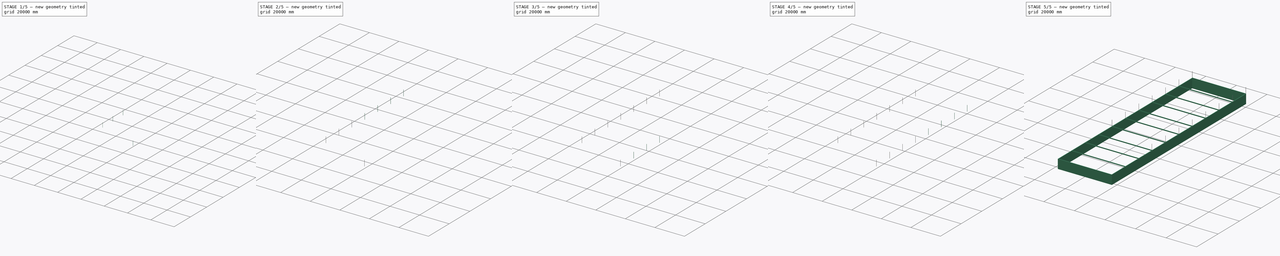
[diagram: build sequence overview — one tinted view per stage of 5, left to right]
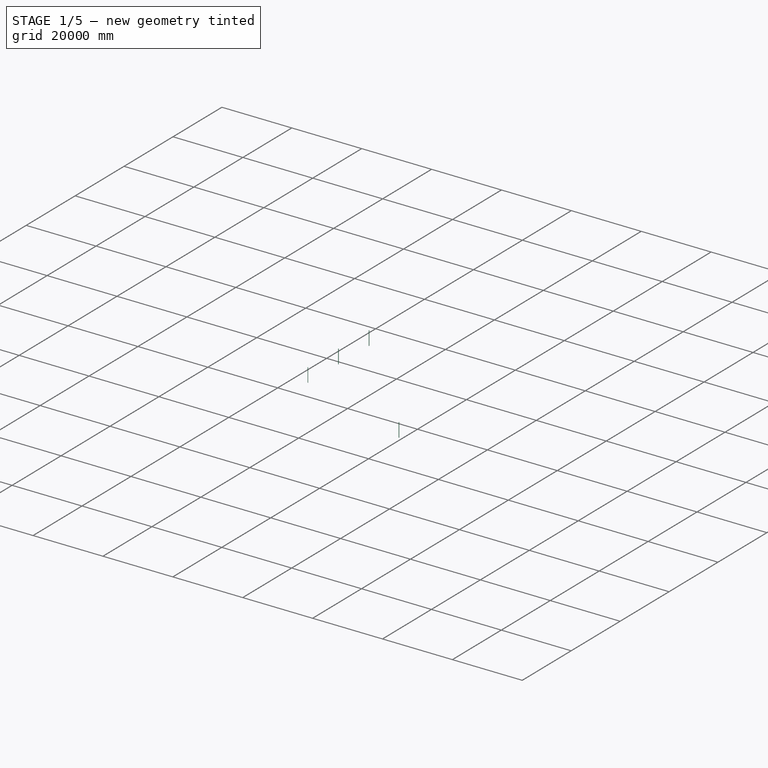
[diagram: stage 1 of 5 — iso view after this stage's code; geometry added in this stage tinted green]
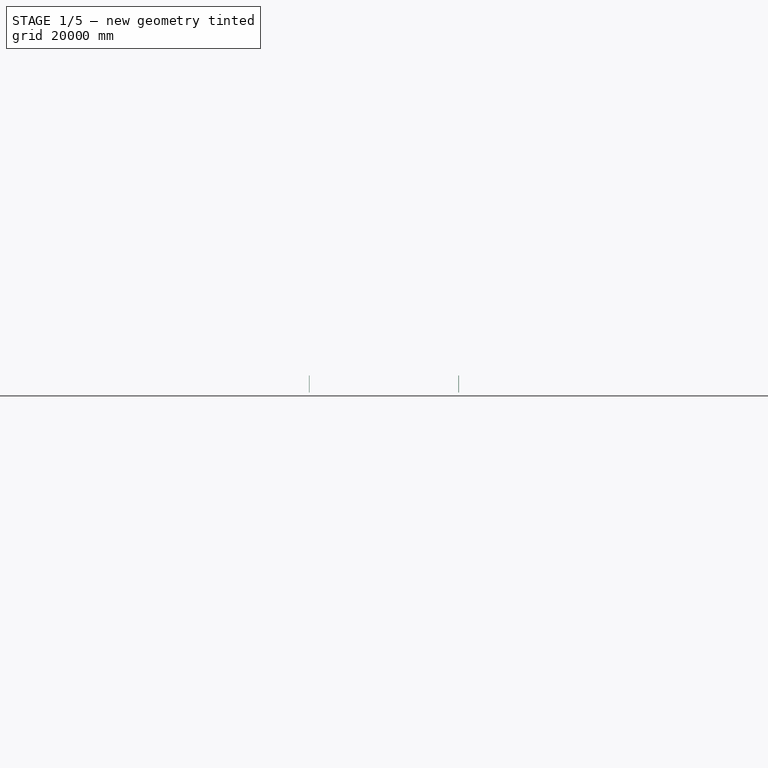
[diagram: stage 1 of 5 — front view after this stage's code; geometry added in this stage tinted green]
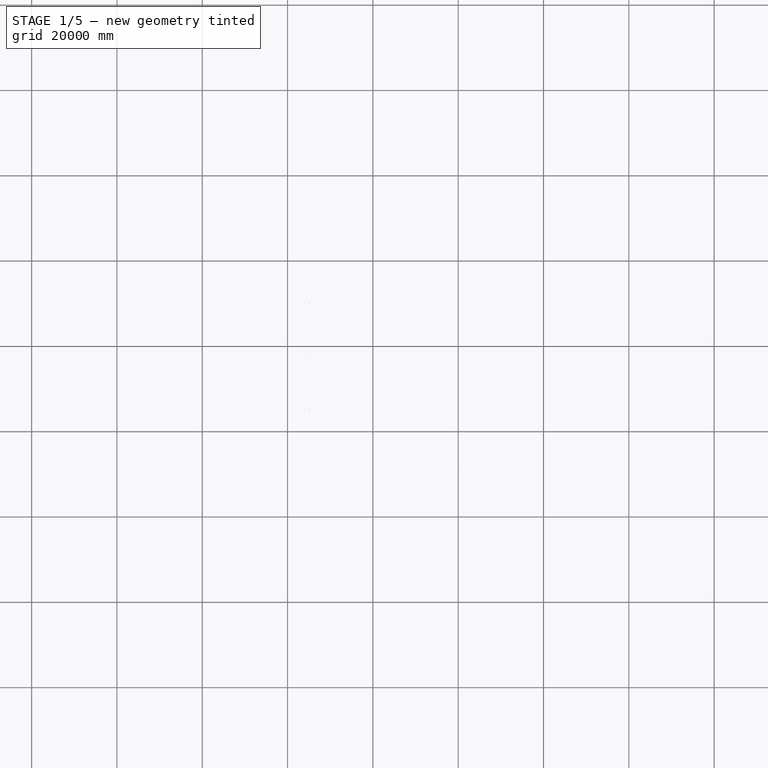
[diagram: stage 1 of 5 — top view after this stage's code; geometry added in this stage tinted green]
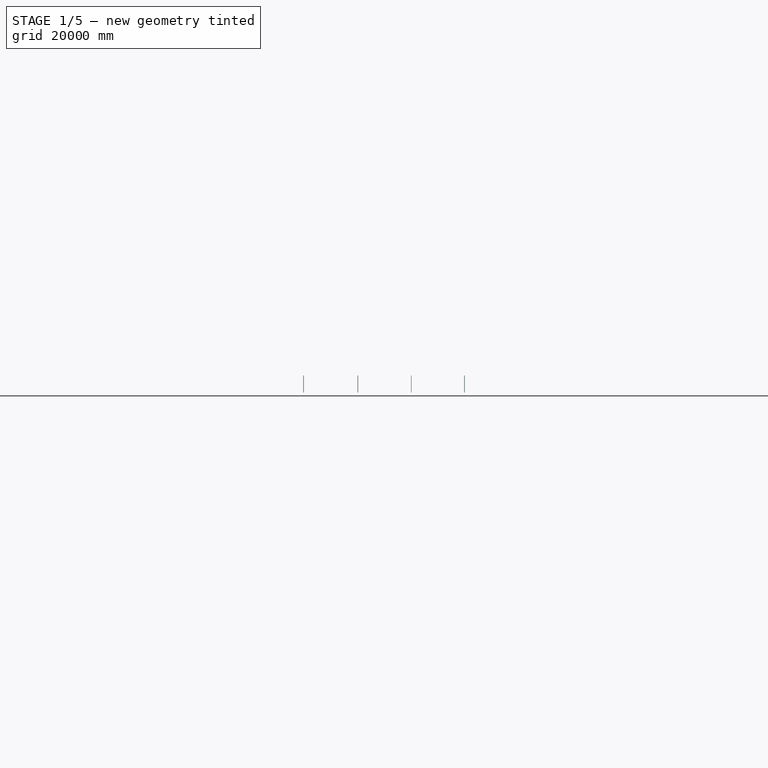
[diagram: stage 1 of 5 — right view after this stage's code; geometry added in this stage tinted green]
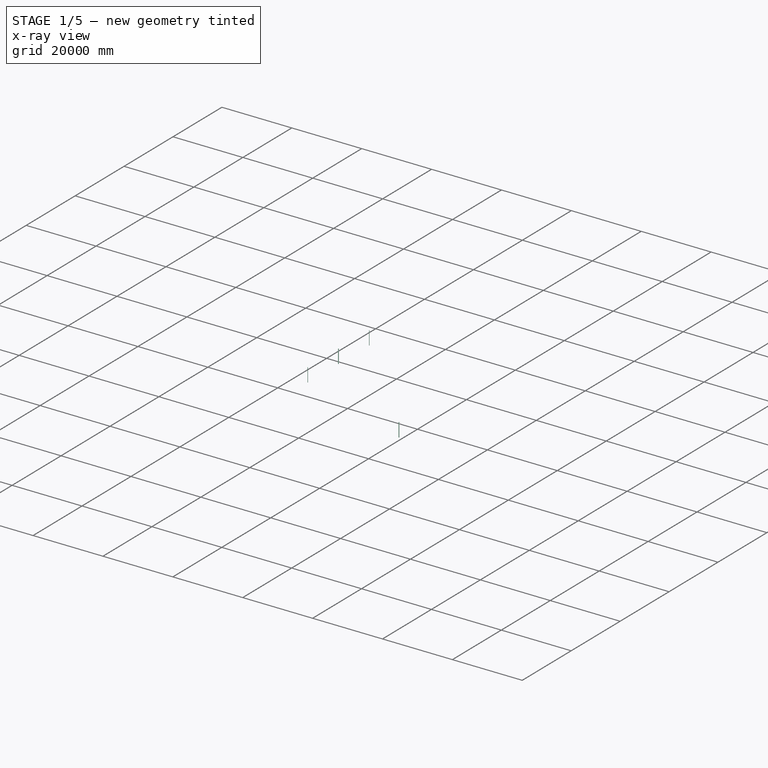
[diagram: stage 1 of 5 — x-ray composite at the iso view; earlier geometry ghosted, this stage's added geometry solid]
FCSTD DOCUMENT  (FreeCAD 1.0R39319 (Git))
Label: Long-factory
License: All rights reserved
objects: Part::FeaturePython×23, App::GeometryPython×6, Sketcher::SketchObject×5, App::DocumentObjectGroup×3, Part::Feature×1, Part::Part2DObjectPython×1
note: 40 computed .brp shape members not serialized (recipe doc carries the construction recipe); baked Part::Feature solids carry a one-line shape summary decoded from their .brp

FEATURE [Part::FeaturePython] Structure015  label="Column011"  # Arch/BIM 24 (typed FeaturePython)
  BaseMirror = false
  BaseOffsetX = 0
  BaseOffsetY = 0
  BasePerpendicularToTool = false
  BaseRotation = 0
  ComputedLength = 4000
  FaceMaker = 0
  Height = 4000
  HorizontalArea = 10000
  IfcData = attributes={"GlobalId": {"name": "GlobalId", "type": "IfcGloballyUniqueId", "is_enum": false, "enum_values": []}, "Description": {"... (+438 chars omitted),+1 more (map truncated)
  IfcType = 24
  Length = 100
  MoveBase = false
  MoveWithHost = false
  Nodes = (2) [(-3.88578e-16,0,0),(-3.88578e-16,0,4000)]
  NodesOffset = 0
  Normal = (0,0,0)
  PerimeterLength = 400
  Placement = pos=(-34888.8,-49975,6000) rot=(0,0,1;0rad)
  PredefinedType = 0
  ToolOffsetFirst = 0
  ToolOffsetLast = 0
  VerticalArea = 1600000
  Width = 100
FEATURE [Part::FeaturePython] Structure016  label="Column012"  # Arch/BIM 24 (typed FeaturePython)
  BaseMirror = false
  BaseOffsetX = 0
  BaseOffsetY = 0
  BasePerpendicularToTool = false
  BaseRotation = 0
  ComputedLength = 4000
  FaceMaker = 0
  Height = 4000
  HorizontalArea = 10000
  IfcData = attributes={"GlobalId": {"name": "GlobalId", "type": "IfcGloballyUniqueId", "is_enum": false, "enum_values": []}, "Description": {"... (+438 chars omitted),+1 more (map truncated)
  IfcType = 24
  Length = 100
  MoveBase = false
  MoveWithHost = false
  Nodes = (2) [(-3.88578e-16,0,0),(-3.88578e-16,0,4000)]
  NodesOffset = 0
  Normal = (0,0,0)
  PerimeterLength = 400
  Placement = pos=(-34888.8,-62475,6000) rot=(0,0,1;0rad)
  PredefinedType = 0
  ToolOffsetFirst = 0
  ToolOffsetLast = 0
  VerticalArea = 1600000
  Width = 100
FEATURE [Part::FeaturePython] Structure017  label="Column013"  # Arch/BIM 24 (typed FeaturePython)
  BaseMirror = false
  BaseOffsetX = 0
  BaseOffsetY = 0
  BasePerpendicularToTool = false
  BaseRotation = 0
  ComputedLength = 4000
  FaceMaker = 0
  Height = 4000
  HorizontalArea = 10000
  IfcData = attributes={"GlobalId": {"name": "GlobalId", "type": "IfcGloballyUniqueId", "is_enum": false, "enum_values": []}, "Description": {"... (+438 chars omitted),+1 more (map truncated)
  IfcType = 24
  Length = 100
  MoveBase = false
  MoveWithHost = false
  Nodes = (2) [(-3.88578e-16,0,0),(-3.88578e-16,0,4000)]
  NodesOffset = 0
  Normal = (0,0,0)
  PerimeterLength = 400
  Placement = pos=(-34888.8,-74975,6000) rot=(0,0,1;0rad)
  PredefinedType = 0
  ToolOffsetFirst = 0
  ToolOffsetLast = 0
  VerticalArea = 1600000
  Width = 100
FEATURE [Part::FeaturePython] Structure018  label="Column014"  # Arch/BIM 24 (typed FeaturePython)
  BaseMirror = false
  BaseOffsetX = 0
  BaseOffsetY = 0
  BasePerpendicularToTool = false
  BaseRotation = 0
  ComputedLength = 4000
  FaceMaker = 0
  Height = 4000
  HorizontalArea = 10000
  IfcData = attributes={"GlobalId": {"name": "GlobalId", "type": "IfcGloballyUniqueId", "is_enum": false, "enum_values": []}, "Description": {"... (+438 chars omitted),+1 more (map truncated)
  IfcType = 24
  Length = 100
  MoveBase = false
  MoveWithHost = false
  Nodes = (2) [(-3.88578e-16,0,0),(-3.88578e-16,0,4000)]
  NodesOffset = 0
  Normal = (0,0,0)
  PerimeterLength = 400
  Placement = pos=(111.246,-87725,6000) rot=(0,0,1;0rad)
  PredefinedType = 0
  ToolOffsetFirst = 0
  ToolOffsetLast = 0
  VerticalArea = 1600000
  Width = 100
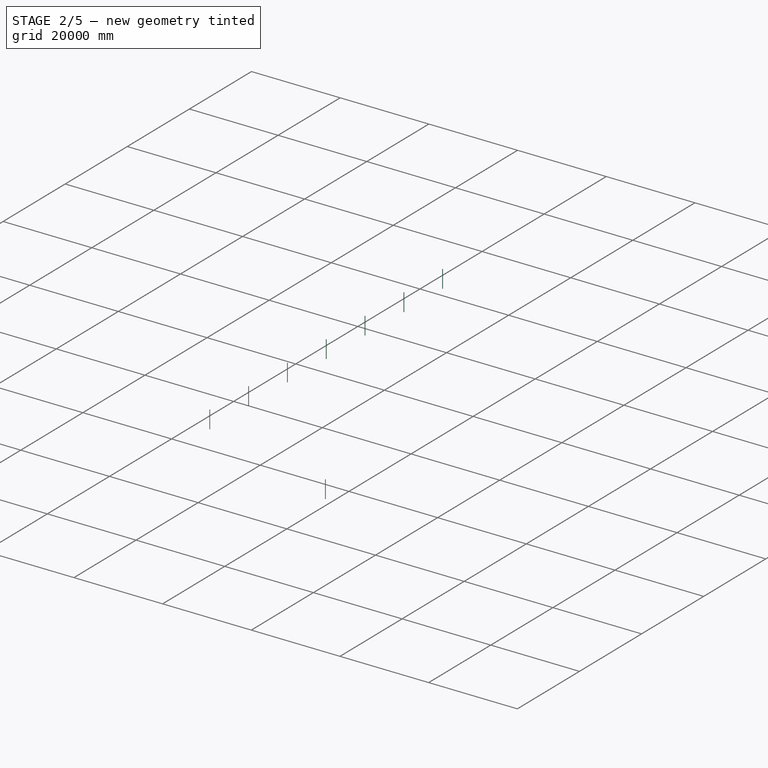
[diagram: stage 2 of 5 — iso view after this stage's code; geometry added in this stage tinted green]
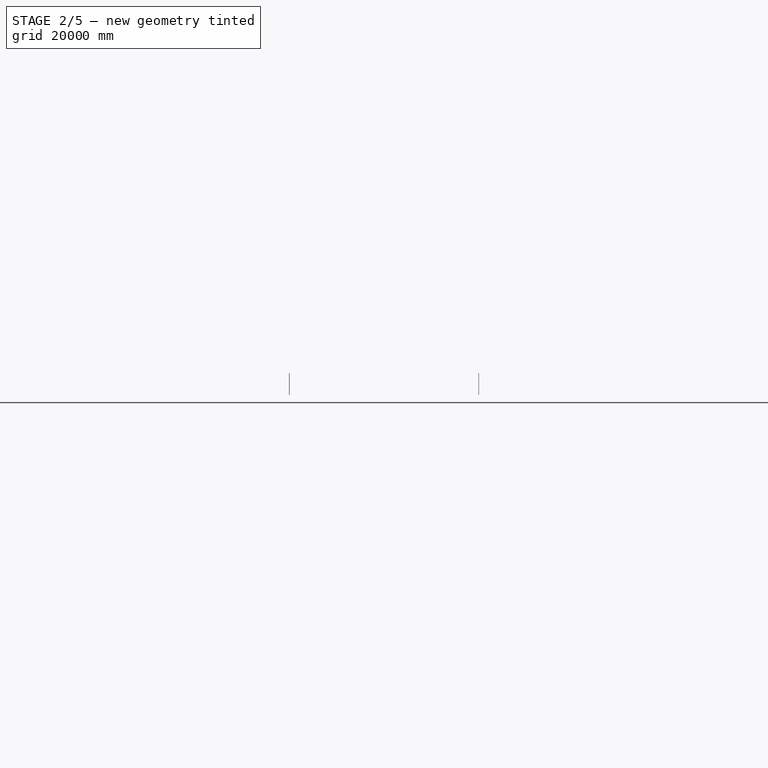
[diagram: stage 2 of 5 — front view after this stage's code; geometry added in this stage tinted green]
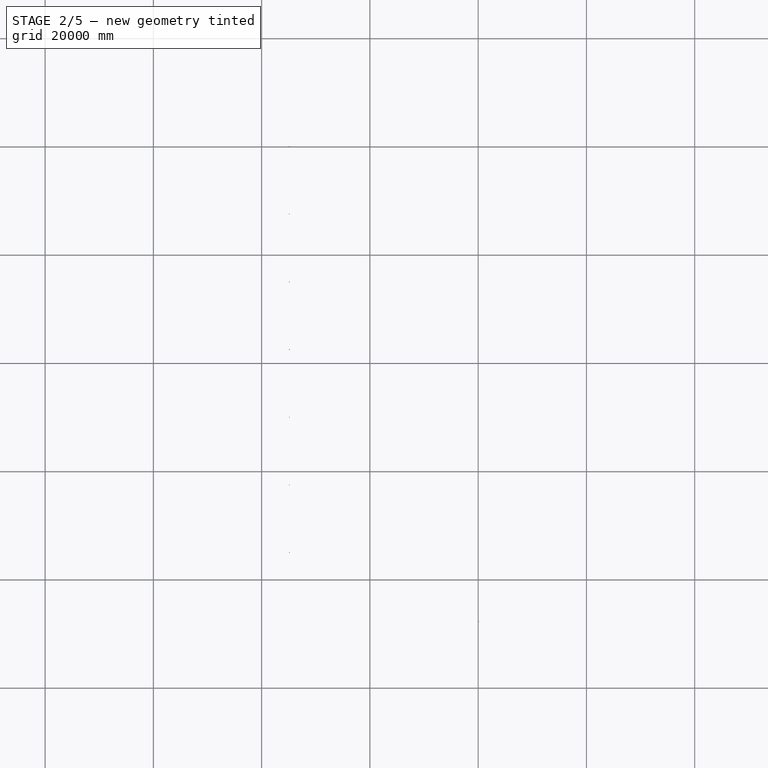
[diagram: stage 2 of 5 — top view after this stage's code; geometry added in this stage tinted green]
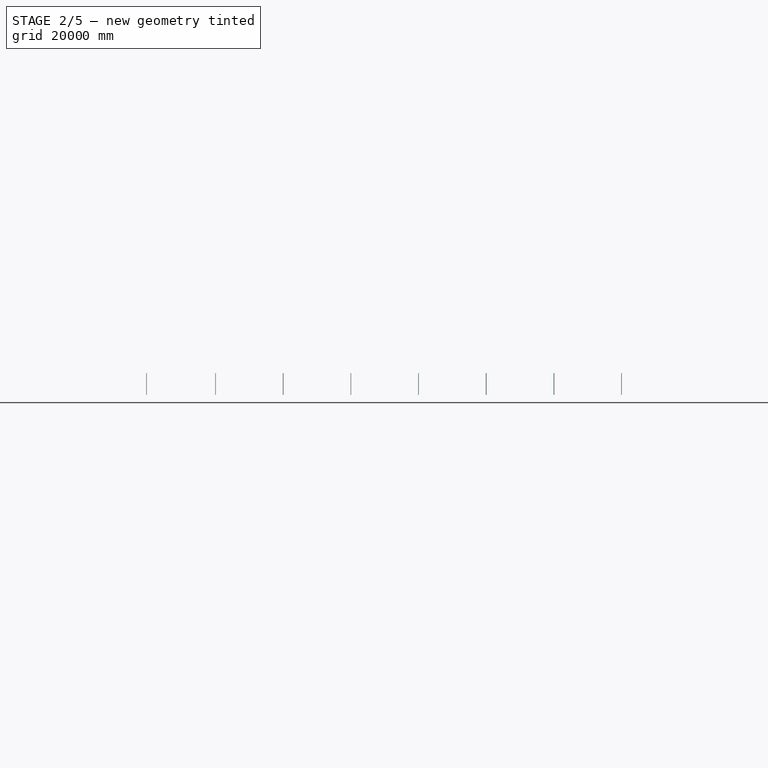
[diagram: stage 2 of 5 — right view after this stage's code; geometry added in this stage tinted green]
FEATURE [Part::FeaturePython] Structure011  label="Column007"  # Arch/BIM 24 (typed FeaturePython)
  BaseMirror = false
  BaseOffsetX = 0
  BaseOffsetY = 0
  BasePerpendicularToTool = false
  BaseRotation = 0
  ComputedLength = 4000
  FaceMaker = 0
  Height = 4000
  HorizontalArea = 10000
  IfcData = attributes={"GlobalId": {"name": "GlobalId", "type": "IfcGloballyUniqueId", "is_enum": false, "enum_values": []}, "Description": {"... (+438 chars omitted),+1 more (map truncated)
  IfcType = 24
  Length = 100
  MoveBase = false
  MoveWithHost = false
  Nodes = (2) [(-3.88578e-16,0,0),(-3.88578e-16,0,4000)]
  NodesOffset = 0
  Normal = (0,0,0)
  PerimeterLength = 400
  Placement = pos=(-34888.8,25,6000) rot=(0,0,1;0rad)
  PredefinedType = 0
  ToolOffsetFirst = 0
  ToolOffsetLast = 0
  VerticalArea = 1600000
  Width = 100
FEATURE [Part::FeaturePython] Structure012  label="Column008"  # Arch/BIM 24 (typed FeaturePython)
  BaseMirror = false
  BaseOffsetX = 0
  BaseOffsetY = 0
  BasePerpendicularToTool = false
  BaseRotation = 0
  ComputedLength = 4000
  FaceMaker = 0
  Height = 4000
  HorizontalArea = 10000
  IfcData = attributes={"GlobalId": {"name": "GlobalId", "type": "IfcGloballyUniqueId", "is_enum": false, "enum_values": []}, "Description": {"... (+438 chars omitted),+1 more (map truncated)
  IfcType = 24
  Length = 100
  MoveBase = false
  MoveWithHost = false
  Nodes = (2) [(-3.88578e-16,0,0),(-3.88578e-16,0,4000)]
  NodesOffset = 0
  Normal = (0,0,0)
  PerimeterLength = 400
  Placement = pos=(-34902.2,-12458.7,6000) rot=(0,0,1;0rad)
  PredefinedType = 0
  ToolOffsetFirst = 0
  ToolOffsetLast = 0
  VerticalArea = 1600000
  Width = 100
FEATURE [Part::FeaturePython] Structure013  label="Column009"  # Arch/BIM 24 (typed FeaturePython)
  BaseMirror = false
  BaseOffsetX = 0
  BaseOffsetY = 0
  BasePerpendicularToTool = false
  BaseRotation = 0
  ComputedLength = 4000
  FaceMaker = 0
  Height = 4000
  HorizontalArea = 10000
  IfcData = attributes={"GlobalId": {"name": "GlobalId", "type": "IfcGloballyUniqueId", "is_enum": false, "enum_values": []}, "Description": {"... (+438 chars omitted),+1 more (map truncated)
  IfcType = 24
  Length = 100
  MoveBase = false
  MoveWithHost = false
  Nodes = (2) [(-3.88578e-16,0,0),(-3.88578e-16,0,4000)]
  NodesOffset = 0
  Normal = (0,0,0)
  PerimeterLength = 400
  Placement = pos=(-34888.8,-24975,6000) rot=(0,0,1;0rad)
  PredefinedType = 0
  ToolOffsetFirst = 0
  ToolOffsetLast = 0
  VerticalArea = 1600000
  Width = 100
FEATURE [Part::FeaturePython] Structure014  label="Column010"  # Arch/BIM 24 (typed FeaturePython)
  BaseMirror = false
  BaseOffsetX = 0
  BaseOffsetY = 0
  BasePerpendicularToTool = false
  BaseRotation = 0
  ComputedLength = 4000
  FaceMaker = 0
  Height = 4000
  HorizontalArea = 10000
  IfcData = attributes={"GlobalId": {"name": "GlobalId", "type": "IfcGloballyUniqueId", "is_enum": false, "enum_values": []}, "Description": {"... (+438 chars omitted),+1 more (map truncated)
  IfcType = 24
  Length = 100
  MoveBase = false
  MoveWithHost = false
  Nodes = (2) [(-3.88578e-16,0,0),(-3.88578e-16,0,4000)]
  NodesOffset = 0
  Normal = (0,0,0)
  PerimeterLength = 400
  Placement = pos=(-34888.8,-37475,6000) rot=(0,0,1;0rad)
  PredefinedType = 0
  ToolOffsetFirst = 0
  ToolOffsetLast = 0
  VerticalArea = 1600000
  Width = 100
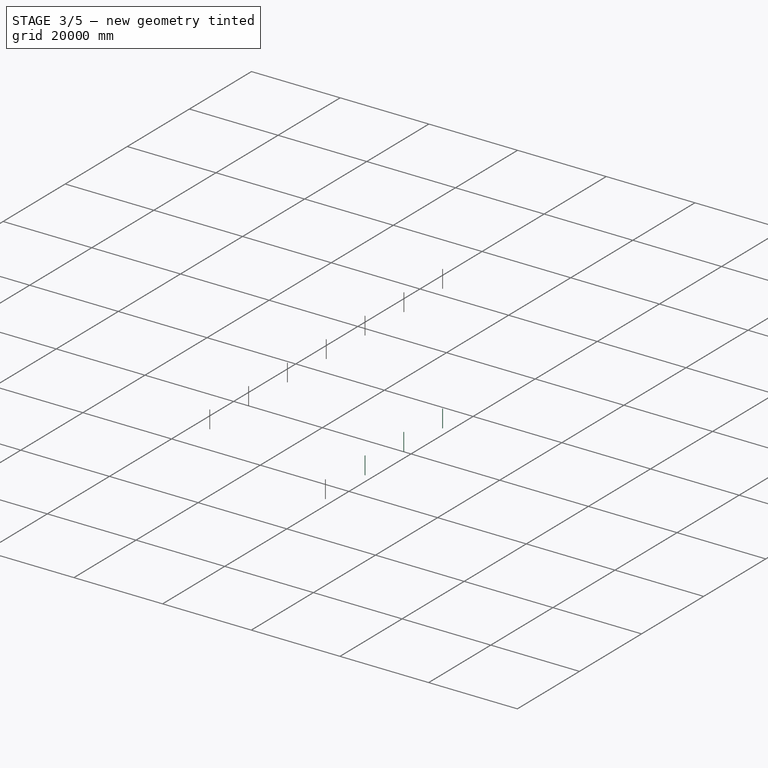
[diagram: stage 3 of 5 — iso view after this stage's code; geometry added in this stage tinted green]
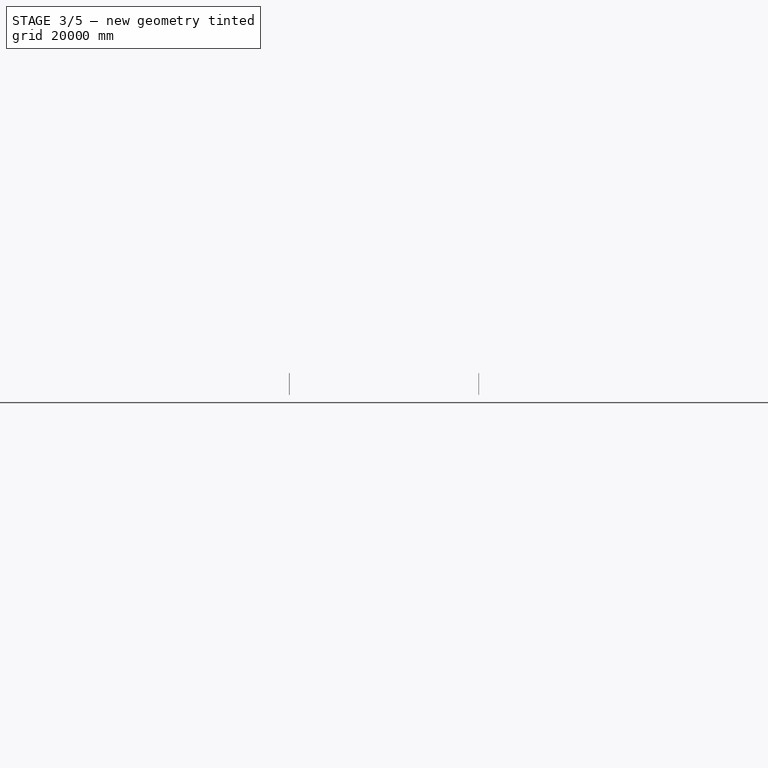
[diagram: stage 3 of 5 — front view after this stage's code; geometry added in this stage tinted green]
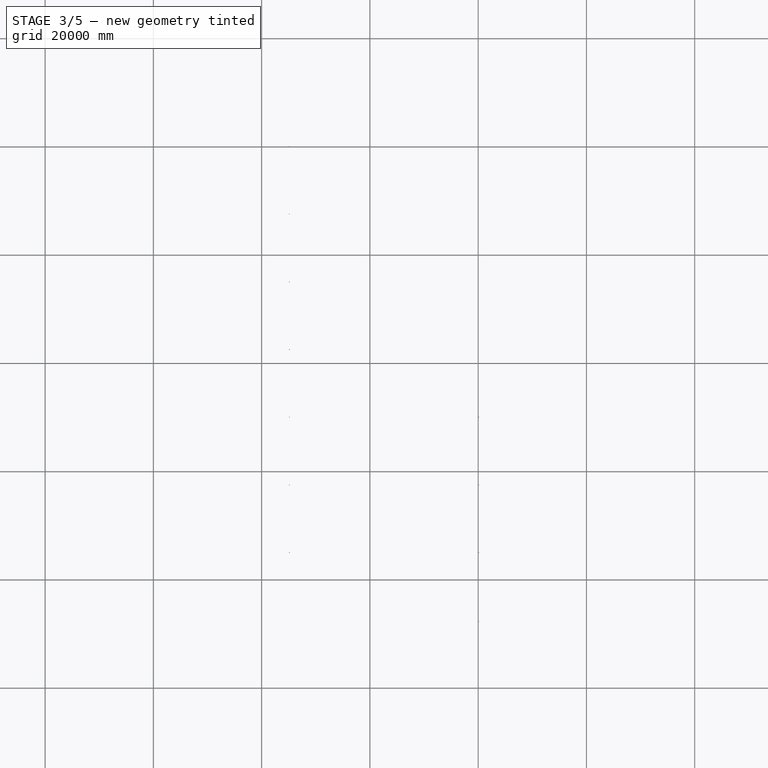
[diagram: stage 3 of 5 — top view after this stage's code; geometry added in this stage tinted green]
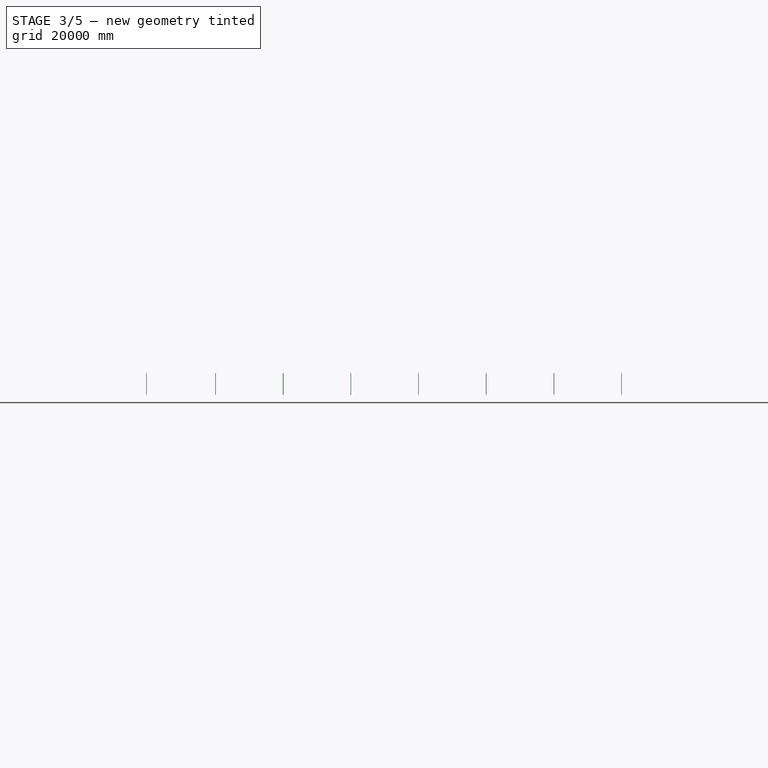
[diagram: stage 3 of 5 — right view after this stage's code; geometry added in this stage tinted green]
FEATURE [Part::FeaturePython] Structure008  label="Column004"  # Arch/BIM 24 (typed FeaturePython)
  BaseMirror = false
  BaseOffsetX = 0
  BaseOffsetY = 0
  BasePerpendicularToTool = false
  BaseRotation = 0
  ComputedLength = 4000
  FaceMaker = 0
  Height = 4000
  HorizontalArea = 10000
  IfcData = attributes={"GlobalId": {"name": "GlobalId", "type": "IfcGloballyUniqueId", "is_enum": false, "enum_values": []}, "Description": {"... (+438 chars omitted),+1 more (map truncated)
  IfcType = 24
  Length = 100
  MoveBase = false
  MoveWithHost = false
  Nodes = (2) [(-3.88578e-16,0,0),(-3.88578e-16,0,4000)]
  NodesOffset = 0
  Normal = (0,0,0)
  PerimeterLength = 400
  Placement = pos=(111.246,-49975,6000) rot=(0,0,1;0rad)
  PredefinedType = 0
  ToolOffsetFirst = 0
  ToolOffsetLast = 0
  VerticalArea = 1600000
  Width = 100
FEATURE [Part::FeaturePython] Structure009  label="Column005"  # Arch/BIM 24 (typed FeaturePython)
  BaseMirror = false
  BaseOffsetX = 0
  BaseOffsetY = 0
  BasePerpendicularToTool = false
  BaseRotation = 0
  ComputedLength = 4000
  FaceMaker = 0
  Height = 4000
  HorizontalArea = 10000
  IfcData = attributes={"GlobalId": {"name": "GlobalId", "type": "IfcGloballyUniqueId", "is_enum": false, "enum_values": []}, "Description": {"... (+438 chars omitted),+1 more (map truncated)
  IfcType = 24
  Length = 100
  MoveBase = false
  MoveWithHost = false
  Nodes = (2) [(-3.88578e-16,0,0),(-3.88578e-16,0,4000)]
  NodesOffset = 0
  Normal = (0,0,0)
  PerimeterLength = 400
  Placement = pos=(111.246,-62475,6000) rot=(0,0,1;0rad)
  PredefinedType = 0
  ToolOffsetFirst = 0
  ToolOffsetLast = 0
  VerticalArea = 1600000
  Width = 100
FEATURE [Part::FeaturePython] Structure010  label="Column006"  # Arch/BIM 24 (typed FeaturePython)
  BaseMirror = false
  BaseOffsetX = 0
  BaseOffsetY = 0
  BasePerpendicularToTool = false
  BaseRotation = 0
  ComputedLength = 4000
  FaceMaker = 0
  Height = 4000
  HorizontalArea = 10000
  IfcData = attributes={"GlobalId": {"name": "GlobalId", "type": "IfcGloballyUniqueId", "is_enum": false, "enum_values": []}, "Description": {"... (+438 chars omitted),+1 more (map truncated)
  IfcType = 24
  Length = 100
  MoveBase = false
  MoveWithHost = false
  Nodes = (2) [(-3.88578e-16,0,0),(-3.88578e-16,0,4000)]
  NodesOffset = 0
  Normal = (0,0,0)
  PerimeterLength = 400
  Placement = pos=(111.246,-74975,6000) rot=(0,0,1;0rad)
  PredefinedType = 0
  ToolOffsetFirst = 0
  ToolOffsetLast = 0
  VerticalArea = 1600000
  Width = 100
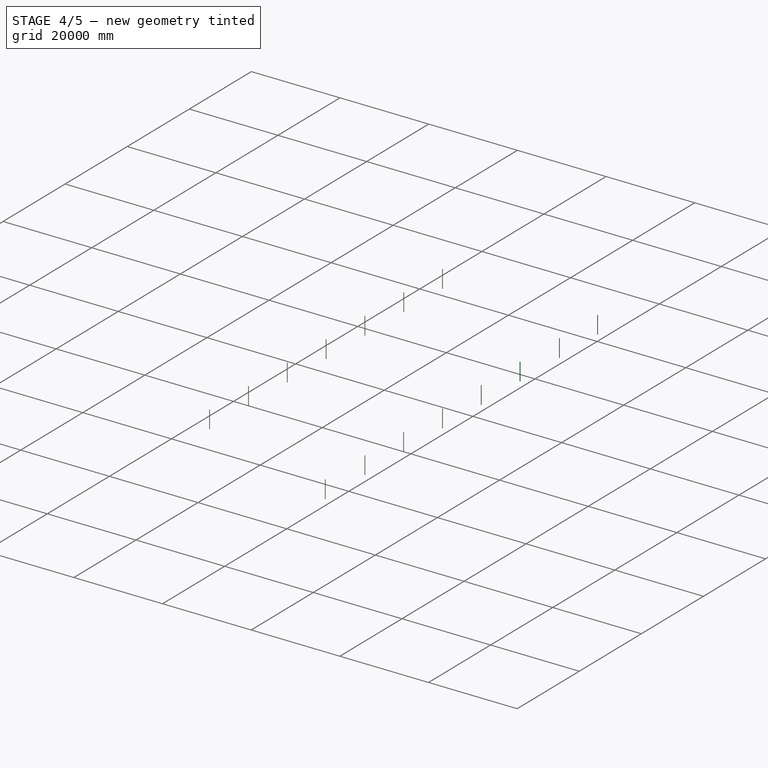
[diagram: stage 4 of 5 — iso view after this stage's code; geometry added in this stage tinted green]
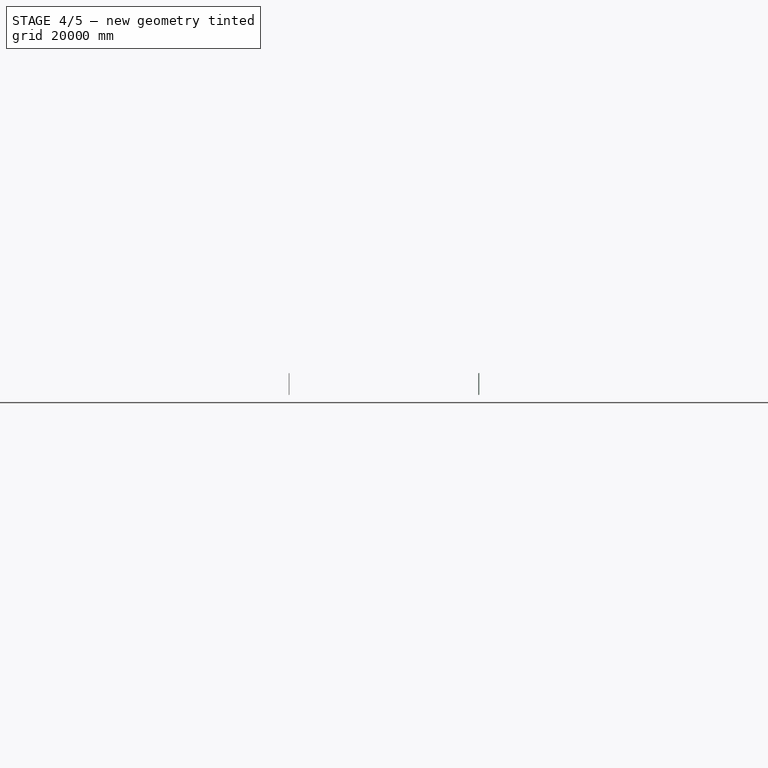
[diagram: stage 4 of 5 — front view after this stage's code; geometry added in this stage tinted green]
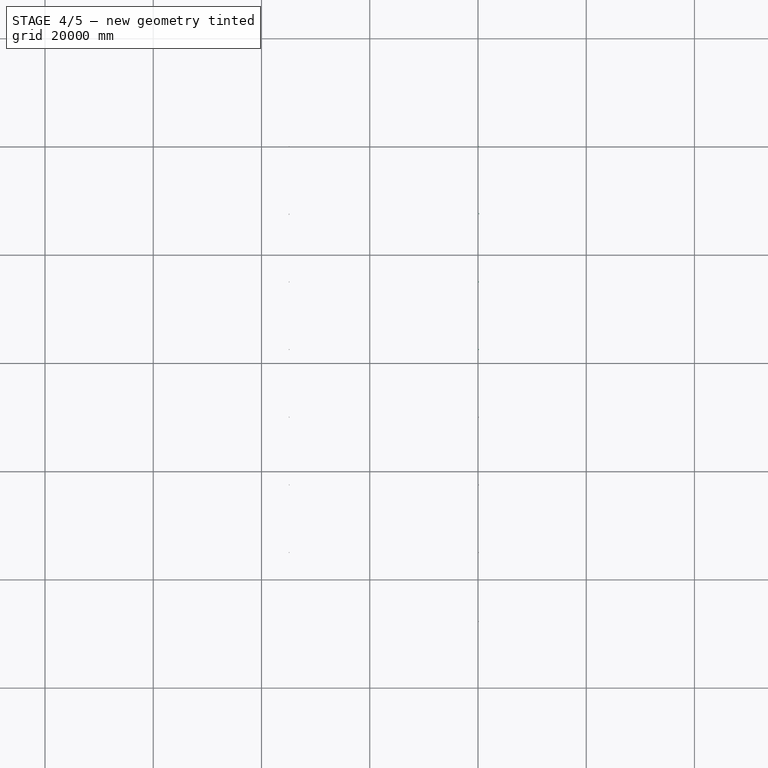
[diagram: stage 4 of 5 — top view after this stage's code; geometry added in this stage tinted green]
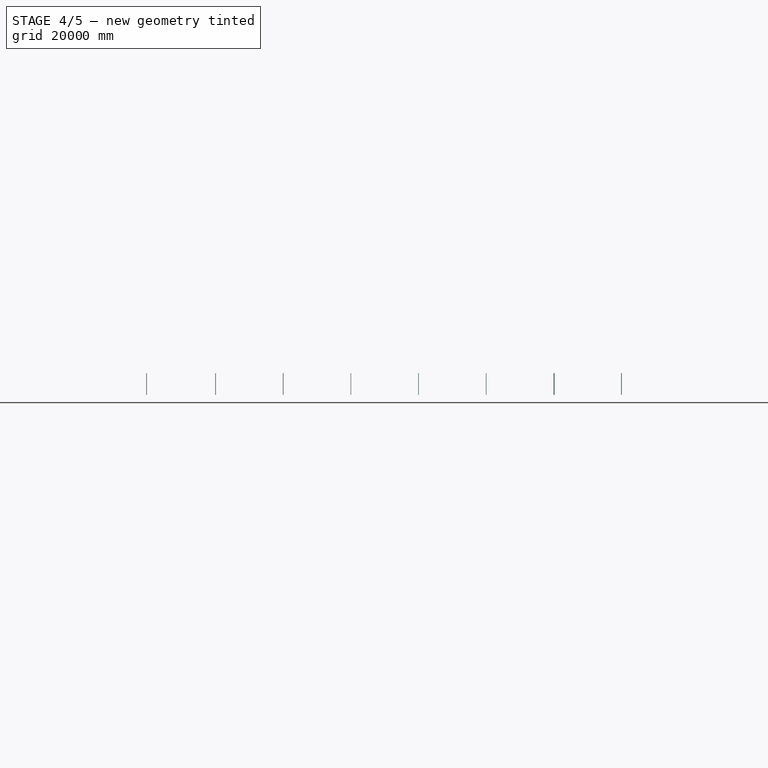
[diagram: stage 4 of 5 — right view after this stage's code; geometry added in this stage tinted green]
FEATURE [Part::FeaturePython] Structure004  label="Column"  # Arch/BIM 24 (typed FeaturePython)
  BaseMirror = false
  BaseOffsetX = 0
  BaseOffsetY = 0
  BasePerpendicularToTool = false
  BaseRotation = 0
  ComputedLength = 4000
  FaceMaker = 0
  Height = 4000
  HorizontalArea = 10000
  IfcData = attributes={"GlobalId": {"name": "GlobalId", "type": "IfcGloballyUniqueId", "is_enum": false, "enum_values": []}, "Description": {"... (+438 chars omitted),+1 more (map truncated)
  IfcType = 24
  Length = 100
  MoveBase = false
  MoveWithHost = false
  Nodes = (2) [(-3.88578e-16,0,0),(-3.88578e-16,0,4000)]
  NodesOffset = 0
  Normal = (0,0,0)
  PerimeterLength = 400
  Placement = pos=(111.246,25,6000) rot=(0,0,1;0rad)
  PredefinedType = 0
  ToolOffsetFirst = 0
  ToolOffsetLast = 0
  VerticalArea = 1600000
  Width = 100
FEATURE [Part::FeaturePython] Structure005  label="Column001"  # Arch/BIM 24 (typed FeaturePython)
  BaseMirror = false
  BaseOffsetX = 0
  BaseOffsetY = 0
  BasePerpendicularToTool = false
  BaseRotation = 0
  ComputedLength = 4000
  FaceMaker = 0
  Height = 4000
  HorizontalArea = 10000
  IfcData = attributes={"GlobalId": {"name": "GlobalId", "type": "IfcGloballyUniqueId", "is_enum": false, "enum_values": []}, "Description": {"... (+438 chars omitted),+1 more (map truncated)
  IfcType = 24
  Length = 100
  MoveBase = false
  MoveWithHost = false
  Nodes = (2) [(-3.88578e-16,0,0),(-3.88578e-16,0,4000)]
  NodesOffset = 0
  Normal = (0,0,0)
  PerimeterLength = 400
  Placement = pos=(175,-12390,6000) rot=(0,0,1;0rad)
  PredefinedType = 0
  ToolOffsetFirst = 0
  ToolOffsetLast = 0
  VerticalArea = 1600000
  Width = 100
FEATURE [Part::FeaturePython] Structure006  label="Column002"  # Arch/BIM 24 (typed FeaturePython)
  BaseMirror = false
  BaseOffsetX = 0
  BaseOffsetY = 0
  BasePerpendicularToTool = false
  BaseRotation = 0
  ComputedLength = 4000
  FaceMaker = 0
  Height = 4000
  HorizontalArea = 10000
  IfcData = attributes={"GlobalId": {"name": "GlobalId", "type": "IfcGloballyUniqueId", "is_enum": false, "enum_values": []}, "Description": {"... (+438 chars omitted),+1 more (map truncated)
  IfcType = 24
  Length = 100
  MoveBase = false
  MoveWithHost = false
  Nodes = (2) [(-3.88578e-16,0,0),(-3.88578e-16,0,4000)]
  NodesOffset = 0
  Normal = (0,0,0)
  PerimeterLength = 400
  Placement = pos=(111.246,-24975,6000) rot=(0,0,1;0rad)
  PredefinedType = 0
  ToolOffsetFirst = 0
  ToolOffsetLast = 0
  VerticalArea = 1600000
  Width = 100
FEATURE [Part::FeaturePython] Structure007  label="Column003"  # Arch/BIM 24 (typed FeaturePython)
  BaseMirror = false
  BaseOffsetX = 0
  BaseOffsetY = 0
  BasePerpendicularToTool = false
  BaseRotation = 0
  ComputedLength = 4000
  FaceMaker = 0
  Height = 4000
  HorizontalArea = 10000
  IfcData = attributes={"GlobalId": {"name": "GlobalId", "type": "IfcGloballyUniqueId", "is_enum": false, "enum_values": []}, "Description": {"... (+438 chars omitted),+1 more (map truncated)
  IfcType = 24
  Length = 100
  MoveBase = false
  MoveWithHost = false
  Nodes = (2) [(-3.88578e-16,0,0),(-3.88578e-16,0,4000)]
  NodesOffset = 0
  Normal = (0,0,0)
  PerimeterLength = 400
  Placement = pos=(111.246,-37475,6000) rot=(0,0,1;0rad)
  PredefinedType = 0
  ToolOffsetFirst = 0
  ToolOffsetLast = 0
  VerticalArea = 1600000
  Width = 100
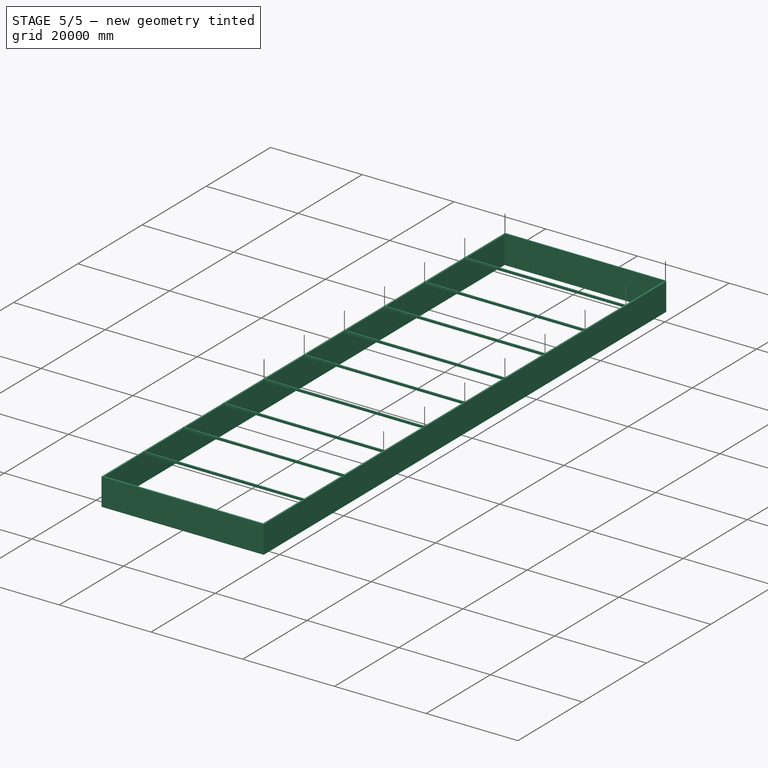
[diagram: stage 5 of 5 — iso view after this stage's code; geometry added in this stage tinted green]
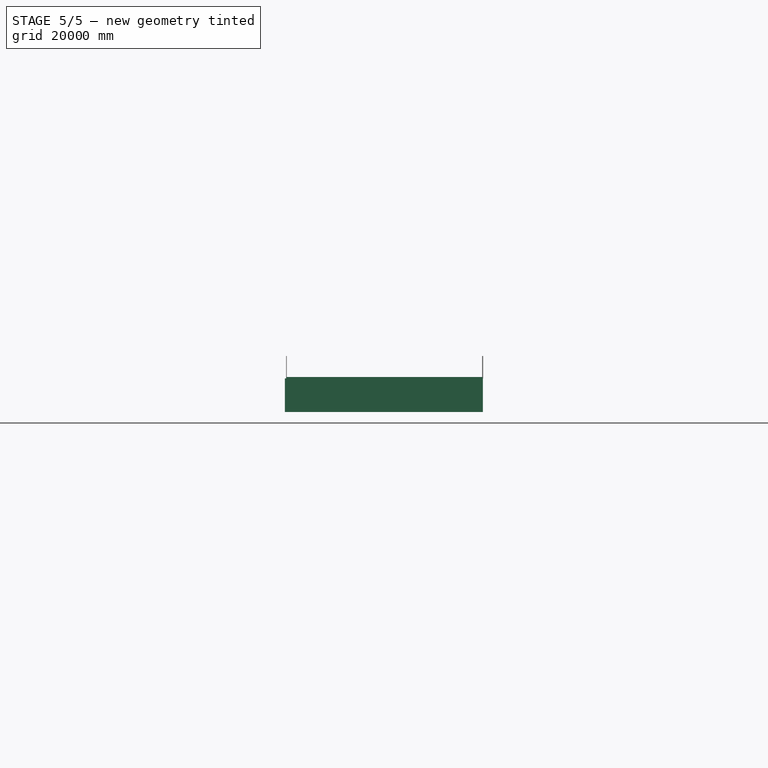
[diagram: stage 5 of 5 — front view after this stage's code; geometry added in this stage tinted green]
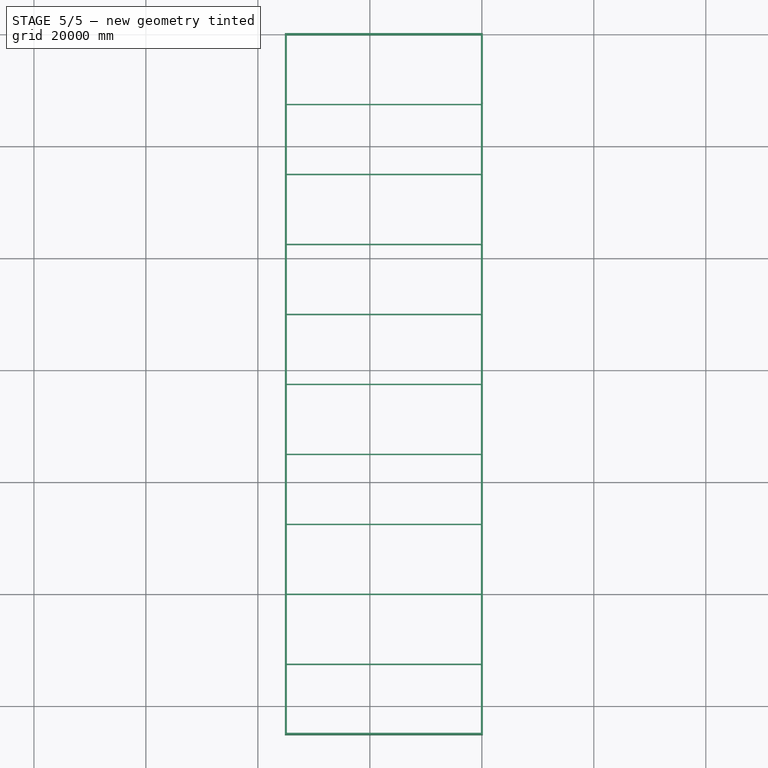
[diagram: stage 5 of 5 — top view after this stage's code; geometry added in this stage tinted green]
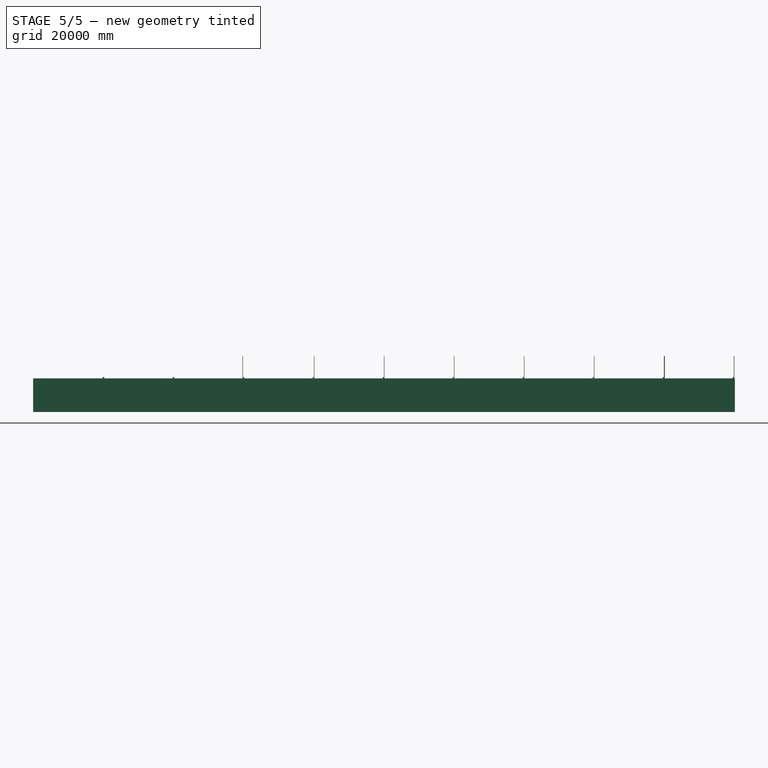
[diagram: stage 5 of 5 — right view after this stage's code; geometry added in this stage tinted green]
FEATURE [App::GeometryPython] BuildingPart  label="Building"  # Arch/BIM 10 (typed FeaturePython)
  Area = 0
  BuildingType = 0
  CompositionType = 0
  ElevationOfRefHeight = 0
  ElevationOfTerrain = 0
  Height = 0
  HeightPropagate = true
  IfcData = attributes={"GlobalId": {"name": "GlobalId", "type": "IfcGloballyUniqueId", "is_enum": false, "enum_values": []}, "Description": {"... (+989 chars omitted),+1 more (map truncated)
  IfcType = 10
  LevelOffset = 0
  LongName = Building
  OnlySolids = true
FEATURE [Part::FeaturePython] Site  # Arch/BIM 117 (typed FeaturePython)
  AdditionVolume = 0
  CompositionType = 0
  Declination = 0
  Elevation = 0
  ExtrusionVector = (0,0,-100000)
  IfcData = attributes={"GlobalId": {"name": "GlobalId", "type": "IfcGloballyUniqueId", "is_enum": false, "enum_values": []}, "Description": {"... (+1044 chars omitted),+1 more (map truncated)
  IfcType = 117
  Latitude = 0
  LongName = Site
  Longitude = 0
  OriginOffset = (0,0,0)
  Perimeter = 0
  ProjectedArea = 0
  RefElevation = 0
  RemoveSplitter = false
  SubtractionVolume = 0
  TimeZone = 0
  expr: RefElevation = .Elevation.Value
FEATURE [Sketcher::SketchObject] WallTrace
  ArcFitTolerance = 1e-06
  FullyConstrained = false
  MakeInternals = false
  sketch-geometry (1):
    g0: LineSegment StartX=0 StartY=0 StartZ=0 EndX=0 EndY=8830 EndZ=0
FEATURE [Sketcher::SketchObject] WallTrace001
  ArcFitTolerance = 1e-06
  FullyConstrained = false
  MakeInternals = false
  sketch-geometry (1):
    g0: LineSegment StartX=100 StartY=0 StartZ=0 EndX=-8960 EndY=0 EndZ=0
FEATURE [Sketcher::SketchObject] WallTrace002
  ArcFitTolerance = 1e-06
  FullyConstrained = false
  MakeInternals = false
  sketch-geometry (1):
    g0: LineSegment StartX=-8960 StartY=-100 StartZ=0 EndX=-8960 EndY=8830 EndZ=0
FEATURE [Sketcher::SketchObject] WallTrace003
  ArcFitTolerance = 1e-06
  FullyConstrained = false
  MakeInternals = false
  sketch-geometry (1):
    g0: LineSegment StartX=-9060 StartY=8830 StartZ=0 EndX=100 EndY=8830 EndZ=0
FEATURE [Part::FeaturePython] Site001  label="Factory"  # Arch/BIM 117 (typed FeaturePython)
  AdditionVolume = 0
  CompositionType = 0
  Declination = 0
  Elevation = 0
  ExtrusionVector = (0,0,-100000)
  IfcData = attributes={"GlobalId": {"name": "GlobalId", "type": "IfcGloballyUniqueId", "is_enum": false, "enum_values": []}, "Description": {"... (+1047 chars omitted),+1 more (map truncated)
  IfcType = 117
  Latitude = 0
  LongName = Site001
  Longitude = 0
  OriginOffset = (0,0,0)
  Perimeter = 0
  ProjectedArea = 0
  RefElevation = 0
  RemoveSplitter = false
  SubtractionVolume = 0
  TimeZone = 0
  expr: RefElevation = .Elevation.Value
FEATURE [Part::Feature] Human
  Placement = pos=(500,500,0) rot=(0,0,1;0rad)
FEATURE [App::DocumentObjectGroup] App__DocumentObjectGroup  label="Building Layout"
  Group = -> [Human]
FEATURE [App::GeometryPython] BuildingPart002  label="Level001"  # Arch/BIM 14 (typed FeaturePython)
  Area = 0
  CompositionType = 0
  Elevation = 6000
  Height = 0
  HeightPropagate = true
  IfcData = attributes={"GlobalId": {"name": "GlobalId", "type": "IfcGloballyUniqueId", "is_enum": false, "enum_values": []}, "Description": {"... (+865 chars omitted),+1 more (map truncated)
  IfcType = 14
  LevelOffset = 0
  LongName = Level001
  OnlySolids = true
  Placement = pos=(0,0,6000) rot=(0,0,1;0rad)
  expr: Elevation = .Placement.Base.z
FEATURE [App::GeometryPython] BuildingPart003  label="Level002"  # Arch/BIM 14 (typed FeaturePython)
  Area = 0
  CompositionType = 0
  Elevation = 6000
  Height = 6000
  HeightPropagate = true
  IfcData = attributes={"GlobalId": {"name": "GlobalId", "type": "IfcGloballyUniqueId", "is_enum": false, "enum_values": []}, "Description": {"... (+865 chars omitted),+1 more (map truncated)
  IfcType = 14
  LevelOffset = 0
  LongName = Level002
  OnlySolids = true
  Placement = pos=(0,0,6000) rot=(0,0,1;0rad)
  expr: Elevation = .Placement.Base.z
FEATURE [Part::Part2DObjectPython] Rectangle  # Draft 2D object (typed FeaturePython)
  Area = 28773800
  ChamferSize = 0
  Columns = 1
  FilletRadius = 0
  Height = 4510
  Length = 6380
  MakeFace = true
  Placement = pos=(-5440,-3640,0) rot=(0,0,1;0rad)
  Rows = 1
FEATURE [App::DocumentObjectGroup] Draft_Construction  label="Construction"
  Group = -> [Rectangle]
FEATURE [Sketcher::SketchObject] Sketch
  ArcFitTolerance = 1e-06
  FullyConstrained = true
  MakeInternals = false
  sketch-geometry (4):
    g0: LineSegment StartX=0 StartY=0 StartZ=0 EndX=0 EndY=-125000 EndZ=0
    g1: LineSegment StartX=0 StartY=-125000 StartZ=0 EndX=-35000 EndY=-125000 EndZ=0
    g2: LineSegment StartX=-35000 StartY=-125000 StartZ=0 EndX=-35000 EndY=0 EndZ=0
    g3: LineSegment StartX=-35000 StartY=0 StartZ=0 EndX=0 EndY=0 EndZ=0
  constraints (12):
    c: PointOnObject(g0,g-2)
    c: Coincident(g0,g1)
    c: Coincident(g1,g2)
    c: Coincident(g2,g3)
    c: PointOnObject(g3,g-1)
    c: Horizontal(g3)
    c: Vertical(g2)
    c: Horizontal(g1)
    c: Vertical(g0)
    c: DistanceX(g1,g1) = 35000
    c: Distance(g0,g0) = 125000
    c: Coincident(g0,g3)
FEATURE [Part::FeaturePython] Wall  # Arch/BIM 166 (typed FeaturePython)
  Align = 2
  ArchSketchData = true
  Area = 1920000000
  Base = -> Sketch
  BlockHeight = 0
  BlockLength = 0
  CountBroken = 0
  CountEntire = 0
  Face = 0
  Height = 6000
  HorizontalArea = 8750245000
  IfcData = attributes={"GlobalId": {"name": "GlobalId", "type": "IfcGloballyUniqueId", "is_enum": false, "enum_values": []}, "Description": {"... (+533 chars omitted),+1 more (map truncated)
  IfcType = 166
  Joint = 0
  Length = 320000
  MakeBlocks = false
  MoveBase = false
  MoveWithHost = false
  Normal = (0,0,0)
  OffsetFirst = 0
  OffsetSecond = 0
  PerimeterLength = 640000
  PredefinedType = 0
  VerticalArea = 3840000000
  Width = 350
FEATURE [Part::FeaturePython] Structure  # Arch/BIM 13 (typed FeaturePython)
  Base = -> BuildingPart003
  BaseMirror = false
  BaseOffsetX = 0
  BaseOffsetY = 0
  BasePerpendicularToTool = false
  BaseRotation = 0
  ComputedLength = 0
  FaceMaker = 0
  Height = 34300.7
  HorizontalArea = 0
  IfcData = attributes={"GlobalId": {"name": "GlobalId", "type": "IfcGloballyUniqueId", "is_enum": false, "enum_values": []}, "Description": {"... (+484 chars omitted),+1 more (map truncated)
  IfcType = 13
  Length = 0
  MoveBase = false
  MoveWithHost = false
  NodesOffset = 0
  Normal = (0,0,0)
  PerimeterLength = 0
  PredefinedType = 0
  ToolOffsetFirst = 0
  ToolOffsetLast = 0
  VerticalArea = 0
  Width = 100
FEATURE [Part::FeaturePython] Structure001  # Arch/BIM 13 (typed FeaturePython)
  Base = -> Wall
  BaseMirror = false
  BaseOffsetX = 0
  BaseOffsetY = 0
  BasePerpendicularToTool = false
  BaseRotation = 0
  ComputedLength = 6000
  FaceMaker = 0
  Height = 34300.7
  HorizontalArea = 8750245000
  IfcData = attributes={"GlobalId": {"name": "GlobalId", "type": "IfcGloballyUniqueId", "is_enum": false, "enum_values": []}, "Description": {"... (+484 chars omitted),+1 more (map truncated)
  IfcType = 13
  Length = 0
  MoveBase = false
  MoveWithHost = false
  Nodes = (2) [(-17500,-62500,0),(-17500,-62500,6000)]
  NodesOffset = 0
  Normal = (0,0,0)
  PerimeterLength = 640000
  PredefinedType = 0
  ToolOffsetFirst = 0
  ToolOffsetLast = 0
  VerticalArea = 3840000000
  Width = 100
FEATURE [App::DocumentObjectGroup] Trash
  Group = -> [Structure001,Structure]
FEATURE [App::GeometryPython] BuildingPart004  label="Level 0"  # Arch/BIM 14 (typed FeaturePython)
  Area = 0
  CompositionType = 0
  Elevation = 6000
  Group = -> [BuildingPart002,Wall]
  Height = 0
  HeightPropagate = true
  IfcData = attributes={"GlobalId": {"name": "GlobalId", "type": "IfcGloballyUniqueId", "is_enum": false, "enum_values": []}, "Description": {"... (+862 chars omitted),+1 more (map truncated)
  IfcType = 14
  LevelOffset = 0
  LongName = Level
  MaterialsTable = Undefined=0
  OnlySolids = true
  Placement = pos=(0,0,6000) rot=(0,0,1;0rad)
  expr: Elevation = .Placement.Base.z
FEATURE [App::GeometryPython] BuildingPart005  label="Level 1"  # Arch/BIM 14 (typed FeaturePython)
  Area = 0
  CompositionType = 0
  Elevation = 6000
  Height = 0
  HeightPropagate = true
  IfcData = attributes={"GlobalId": {"name": "GlobalId", "type": "IfcGloballyUniqueId", "is_enum": false, "enum_values": []}, "Description": {"... (+862 chars omitted),+1 more (map truncated)
  IfcType = 14
  LevelOffset = 0
  LongName = Level
  OnlySolids = true
  Placement = pos=(0,0,6000) rot=(0,0,1;0rad)
  expr: Elevation = .Placement.Base.z
FEATURE [App::GeometryPython] BuildingPart006  label="Level 2"  # Arch/BIM 14 (typed FeaturePython)
  Area = 0
  CompositionType = 0
  Elevation = 6000
  Height = 0
  HeightPropagate = true
  IfcData = attributes={"GlobalId": {"name": "GlobalId", "type": "IfcGloballyUniqueId", "is_enum": false, "enum_values": []}, "Description": {"... (+862 chars omitted),+1 more (map truncated)
  IfcType = 14
  LevelOffset = 0
  LongName = Level
  OnlySolids = true
  Placement = pos=(0,0,6000) rot=(0,0,1;0rad)
  expr: Elevation = .Placement.Base.z
FEATURE [Part::FeaturePython] Structure002  # Arch/BIM 13 (typed FeaturePython)
  Base = -> BuildingPart005
  BaseMirror = false
  BaseOffsetX = 0
  BaseOffsetY = 0
  BasePerpendicularToTool = false
  BaseRotation = 0
  ComputedLength = 0
  FaceMaker = 0
  Height = 35146.6
  HorizontalArea = 0
  IfcData = attributes={"GlobalId": {"name": "GlobalId", "type": "IfcGloballyUniqueId", "is_enum": false, "enum_values": []}, "Description": {"... (+484 chars omitted),+1 more (map truncated)
  IfcType = 13
  Length = 0
  MoveBase = false
  MoveWithHost = false
  NodesOffset = 0
  Normal = (0,0,0)
  PerimeterLength = 0
  PredefinedType = 0
  ToolOffsetFirst = 0
  ToolOffsetLast = 0
  VerticalArea = 0
  Width = 100
FEATURE [Part::FeaturePython] Structure003  label="H-beam"  # Arch/BIM 7 (typed FeaturePython)
  BaseMirror = false
  BaseOffsetX = 0
  BaseOffsetY = 0
  BasePerpendicularToTool = true
  BaseRotation = 0
  ComputedLength = 35000
  FaceMaker = 0
  Height = 500
  HorizontalArea = 8750000
  IfcData = attributes={"GlobalId": {"name": "GlobalId", "type": "IfcGloballyUniqueId", "is_enum": false, "enum_values": []}, "Description": {"... (+477 chars omitted),+1 more (map truncated)
  IfcType = 7
  Length = 35000
  MoveBase = false
  MoveWithHost = false
  Nodes = (2) [(-0.25,0,0),(35000,7.27596e-15,-4.21885e-15)]
  NodesOffset = 0
  Normal = (0,0,0)
  PerimeterLength = 70500
  Placement = pos=(-34888.8,-100,6000) rot=(0,0,1;0rad)
  PredefinedType = 5
  ToolOffsetFirst = 0
  ToolOffsetLast = 0
  VerticalArea = 3.525e+07
  Width = 250
FEATURE [Part::FeaturePython] Array  # Draft array (typed FeaturePython)
  AlwaysSyncPlacement = false
  Angle = 360
  ArrayType = 0
  Axis = (0,0,1)
  Base = -> Structure003
  Center = (0,0,0)
  Count = 10
  ExpandArray = false
  Fuse = false
  IntervalAxis = (0,0,0)
  IntervalX = (0,0,0)
  IntervalY = (0,-12500,0)
  IntervalZ = (0,0,0)
  NumberCircles = 3
  NumberPolar = 5
  NumberX = 1
  NumberY = 10
  NumberZ = 1
  PlacementList = 10 placements: arithmetic series from (-34888.8,-100,6000) step (0,-12500,0) to (-34888.8,-112600,6000)
  RadialDistance = 50
  ScaleList = (10) [(1,1,1),(1,1,1),(1,1,1),(1,1,1),(1,1,1),(1,1,1),(1,1,1),(1,1,1),(1,1,1),(1,1,1)]
  Symmetry = 1
  TangentialDistance = 25
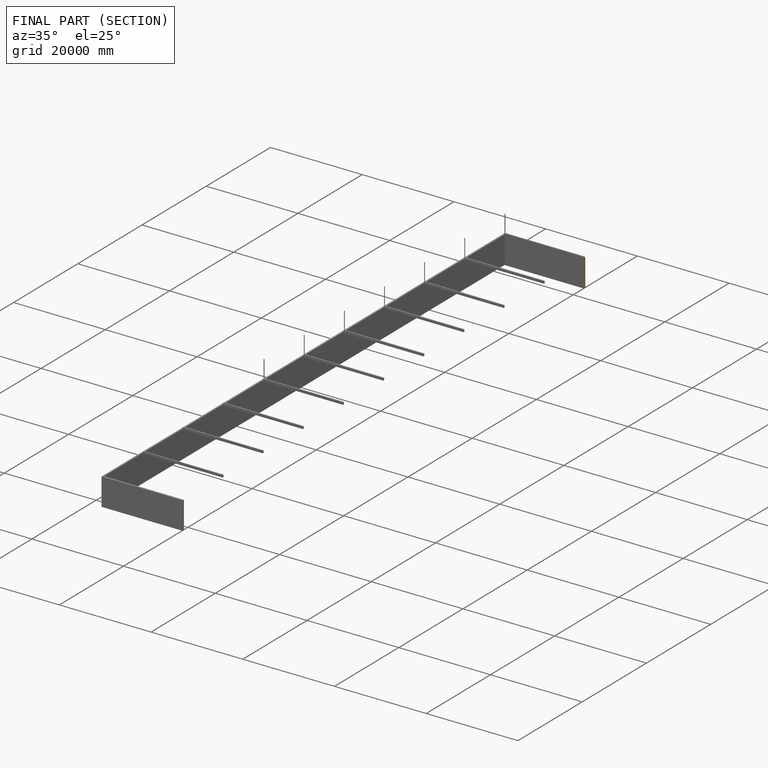
[diagram: finished part — half-section view (interior)]
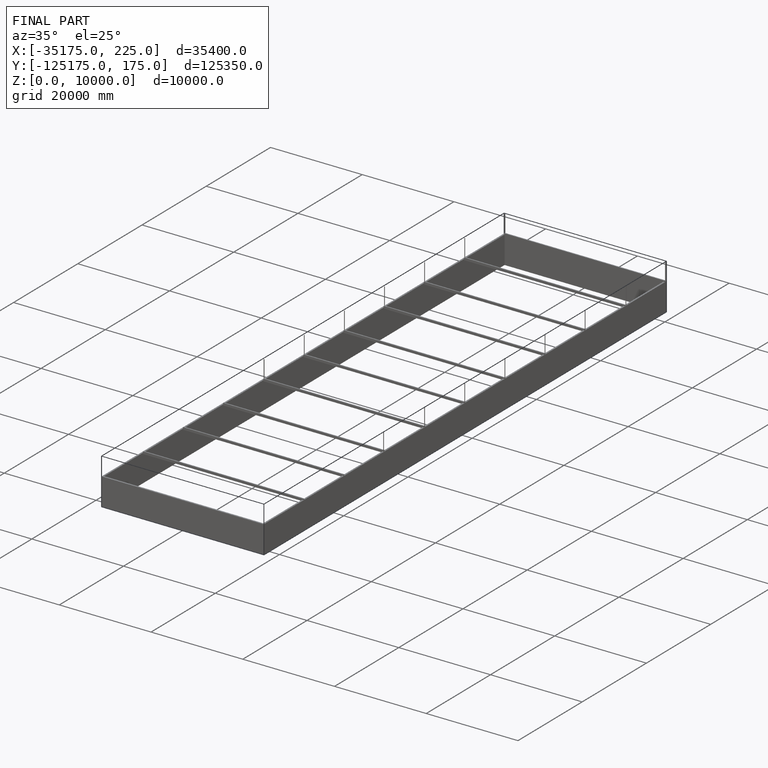
[diagram: finished part — iso view with bounding-box wireframe]
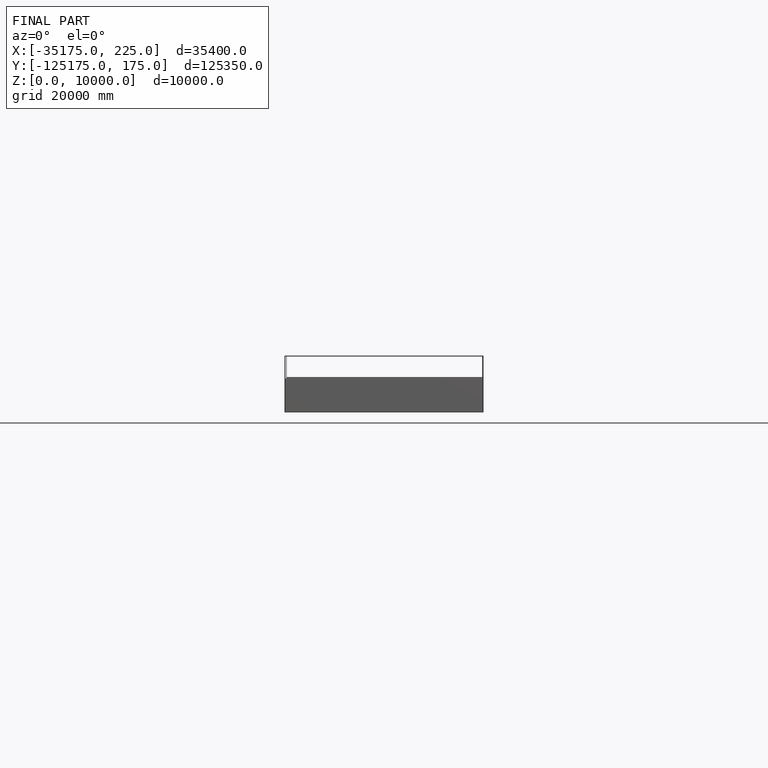
[diagram: finished part — front view with bounding-box wireframe]
